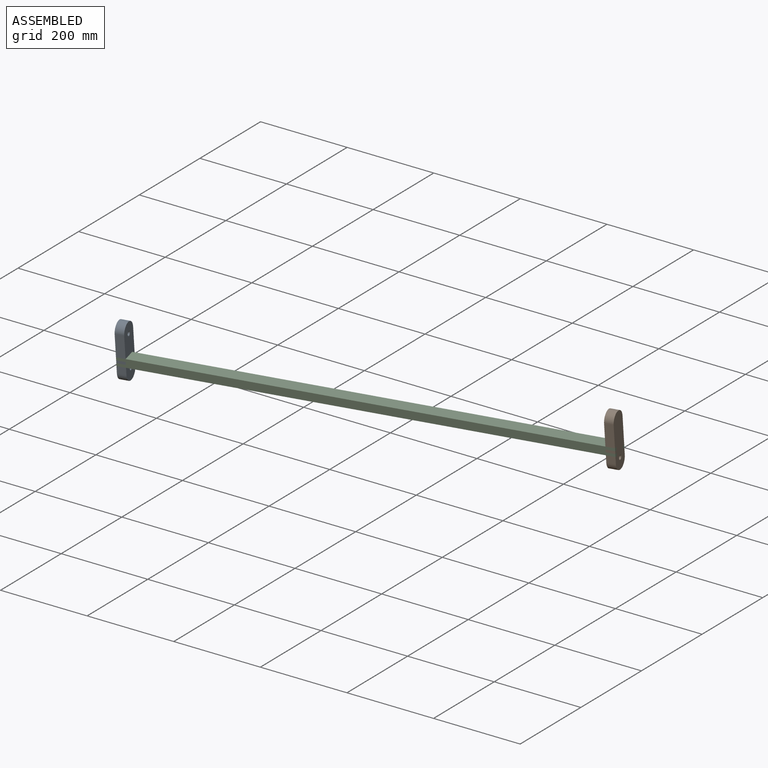
[diagram: assembled view]
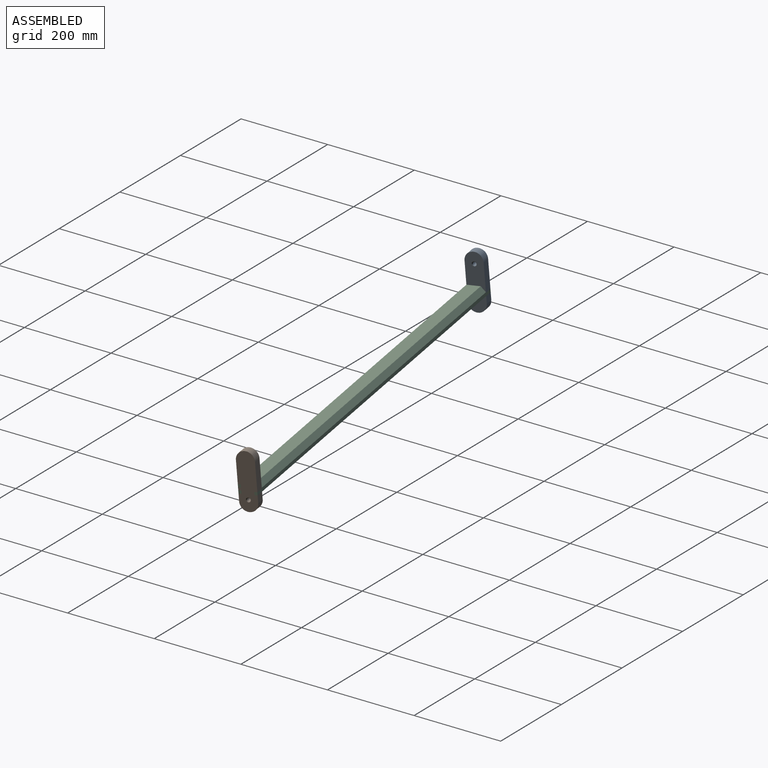
[diagram: assembled view, second angle]
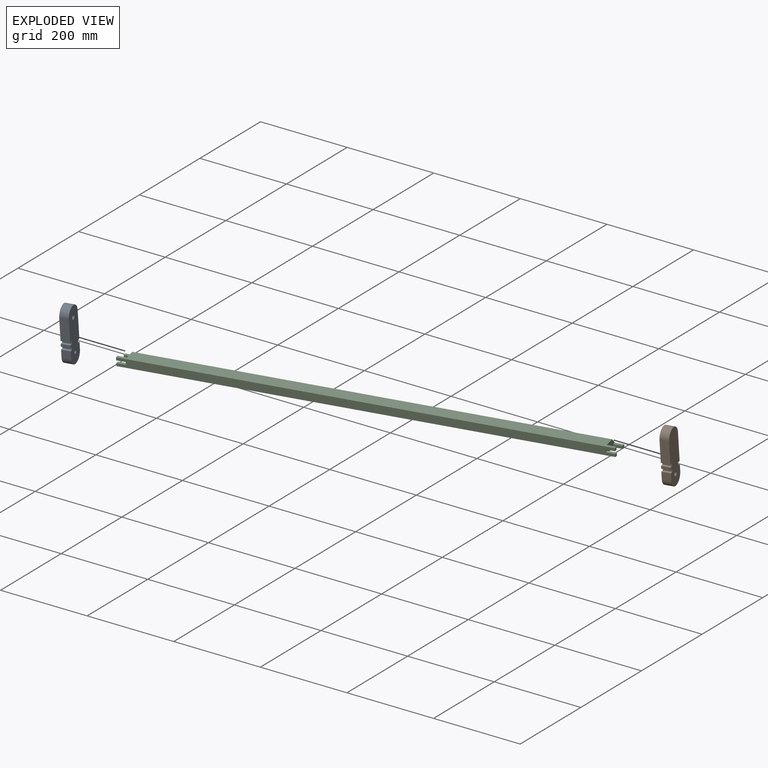
[diagram: exploded view]
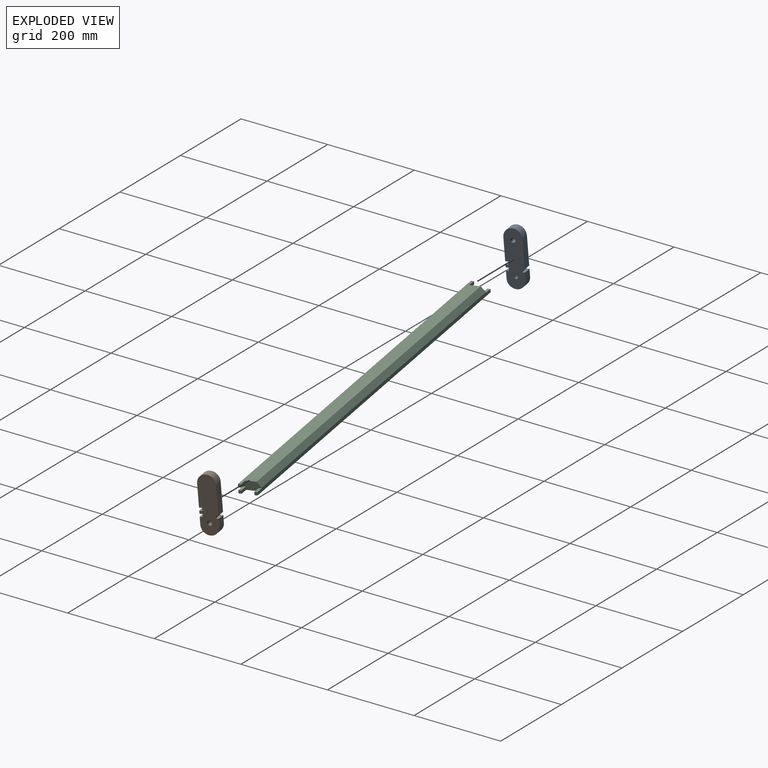
[diagram: exploded view, second angle]
ASSEMBLY  parts=3 mates=2
PART A: 22 faces, bbox 40x20x125 mm
  f0: plane 49.79x20mm, normal (1,0,0), area 995.7mm2, adj f3,f4,f6,f15
  f1: plane 20x6mm, normal (1,0,0), area 120mm2, adj f3,f4,f9,f16
  f2: plane 62.29x20mm, normal (-1,0,0), area 1245.7mm2, adj f3,f4,f6,f14
  f3: plane 125x40mm, normal (0,-1,0), area 4397.9mm2, adj f0,f1,f2,f5,f6,f7,f8,f9
  f4: plane 125x40mm, normal (0,1,0), area 4397.9mm2, adj f0,f1,f2,f5,f6,f7,f8,f9
  f5: plane 20x16.21mm, normal (1,0,0), area 324.3mm2, adj f3,f4,f8,f10
  f6: cylinder r=20mm len=40mm, axis (0,1,0), area 1256.6mm2, adj f0,f2,f3,f4
  f7: plane 20x16.21mm, normal (-1,0,0), area 324.3mm2, adj f3,f4,f8,f13
  f8: cylinder r=20mm len=40mm, axis (0,1,0), area 1256.6mm2, adj f3,f4,f5,f7
  f9: plane 20x6.5mm, normal (0,0,-1), area 130mm2, adj f1,f3,f4,f11
  f10: plane 20x6.5mm, normal (0,0,1), area 130mm2, adj f3,f4,f5,f11
  f11: plane 20x6.5mm, normal (1,0,0), area 130mm2, adj f3,f4,f9,f10
  f12: plane 20x6.5mm, normal (-1,0,0), area 130mm2, adj f3,f4,f13,f14
  f13: plane 20x6.5mm, normal (0,0,1), area 130mm2, adj f3,f4,f7,f12
  f14: plane 20x6.5mm, normal (0,0,-1), area 130mm2, adj f2,f3,f4,f12
  f15: plane 20x6.5mm, normal (0,0,-1), area 130mm2, adj f0,f3,f4,f17
  f16: plane 20x6.5mm, normal (0,0,1), area 130mm2, adj f1,f3,f4,f17
  f17: plane 20x6.5mm, normal (1,0,0), area 130mm2, adj f3,f4,f15,f16
  f18: cylinder r=4mm len=18.9mm, axis (0,1,0), area 475mm2, adj f3,f20
  f19: cylinder r=4mm len=18.9mm, axis (0,-1,0), area 475mm2, adj f4,f21
  f20: cone r=5.1mm half-angle=45deg, axis (0,1,0), area 44.5mm2, adj f4,f18
  f21: cone r=5.1mm half-angle=45deg, axis (0,-1,0), area 44.5mm2, adj f3,f19
PART B: 23 faces, bbox 40x20x125 mm
  f0: plane 20x16.21mm, normal (-1,0,0), area 324.3mm2, adj f3,f4,f7,f9
  f1: plane 20x6mm, normal (1,0,0), area 120mm2, adj f3,f4,f12,f17
  f2: plane 20x16.21mm, normal (1,0,0), area 324.3mm2, adj f3,f4,f7,f14
  f3: plane 125x40mm, normal (0,-1,0), area 4401.1mm2, adj f0,f1,f2,f5,f6,f7,f8,f9
  f4: plane 125x40mm, normal (0,1,0), area 4451.3mm2, adj f0,f1,f2,f5,f6,f7,f8,f9
  f5: cylinder r=20mm len=40mm, axis (0,1,0), area 1256.6mm2, adj f3,f4,f6,f8
  f6: plane 62.29x20mm, normal (-1,0,0), area 1245.7mm2, adj f3,f4,f5,f11
  f7: cylinder r=20mm len=40mm, axis (0,1,0), area 1256.6mm2, adj f0,f2,f3,f4
  f8: plane 49.79x20mm, normal (1,0,0), area 995.7mm2, adj f3,f4,f5,f15
  f9: plane 20x6.5mm, normal (0,0,1), area 130mm2, adj f0,f3,f4,f10
  f10: plane 20x6.5mm, normal (-1,0,0), area 130mm2, adj f3,f4,f9,f11
  f11: plane 20x6.5mm, normal (0,0,-1), area 130mm2, adj f3,f4,f6,f10
  f12: plane 20x6.5mm, normal (0,0,-1), area 130mm2, adj f1,f3,f4,f13
  f13: plane 20x6.5mm, normal (1,0,0), area 130mm2, adj f3,f4,f12,f14
  f14: plane 20x6.5mm, normal (0,0,1), area 130mm2, adj f2,f3,f4,f13
  f15: plane 20x6.5mm, normal (0,0,-1), area 130mm2, adj f3,f4,f8,f16
  f16: plane 20x6.5mm, normal (1,0,0), area 130mm2, adj f3,f4,f15,f17
  f17: plane 20x6.5mm, normal (0,0,1), area 130mm2, adj f1,f3,f4,f16
  f18: cylinder r=4mm len=19mm, axis (0,1,0), area 477.5mm2, adj f3,f22
  f19: cylinder r=4mm len=10mm, axis (0,-1,0), area 251.3mm2, adj f20,f21
  f20: plane 8x8mm, normal (0,-1,0), area 50.3mm2, adj f19
  f21: cone r=5mm half-angle=45deg, axis (0,-1,0), area 40mm2, adj f3,f19
  f22: cone r=5mm half-angle=45deg, axis (0,1,0), area 40mm2, adj f4,f18
PART C: 25 faces, bbox 1042x40x19 mm
  f0: plane 40x19mm, normal (-1,0,0), area 577.3mm2, adj f1,f3,f4,f5,f6,f7,f9,f10
  f1: plane 1042x7.82mm, normal (0,-1,0), area 8095.3mm2, adj f0,f2,f4,f10,f11,f16,f17,f24
  f2: plane 40x19mm, normal (1,0,0), area 577.3mm2, adj f1,f3,f4,f5,f15,f16,f18,f19
  f3: plane 1042x30mm, normal (0,0,1), area 30320mm2, adj f0,f2,f5,f7,f8,f19,f20,f24
  f4: plane 1042x40mm, normal (0,0,-1), area 40600mm2, adj f0,f1,f2,f5,f9,f11,f13,f14
  f5: plane 1042x19mm, normal (0,1,0), area 19558mm2, adj f0,f2,f3,f4,f6,f8,f12,f14
  f6: plane 20x6.5mm, normal (0,0,-1), area 130mm2, adj f0,f5,f7,f8
  f7: plane 20x6.5mm, normal (0,-1,0), area 130mm2, adj f0,f3,f6,f8
  f8: plane 6.5x6.5mm, normal (-1,0,0), area 42.3mm2, adj f3,f5,f6,f7
  f9: plane 20x6.5mm, normal (0,1,0), area 130mm2, adj f0,f4,f10,f11
  f10: plane 20x6.5mm, normal (0,0,1), area 130mm2, adj f0,f1,f9,f11
  f11: plane 6.5x6.5mm, normal (-1,0,0), area 42.2mm2, adj f1,f4,f9,f10
  f12: plane 20x6.5mm, normal (0,0,1), area 130mm2, adj f0,f5,f13,f14
  f13: plane 20x6.5mm, normal (0,-1,0), area 130mm2, adj f0,f4,f12,f14
  f14: plane 6.5x6.5mm, normal (-1,0,0), area 42.2mm2, adj f4,f5,f12,f13
  f15: plane 20x6.5mm, normal (0,1,0), area 130mm2, adj f2,f4,f16,f17
  f16: plane 20x6.5mm, normal (0,0,1), area 130mm2, adj f1,f2,f15,f17
  f17: plane 6.5x6.5mm, normal (1,0,0), area 42.2mm2, adj f1,f4,f15,f16
  f18: plane 20x6.5mm, normal (0,0,-1), area 130mm2, adj f2,f5,f19,f20
  f19: plane 20x6.5mm, normal (0,-1,0), area 130mm2, adj f2,f3,f18,f20
  f20: plane 6.5x6.5mm, normal (1,0,0), area 42.3mm2, adj f3,f5,f18,f19
  f21: plane 20x6.5mm, normal (0,-1,0), area 130mm2, adj f2,f4,f22,f23
  f22: plane 20x6.5mm, normal (0,0,1), area 130mm2, adj f2,f5,f21,f23
  f23: plane 6.5x6.5mm, normal (1,0,0), area 42.2mm2, adj f4,f5,f21,f22
  f24: plane 1002x11.18mm, normal (0,-0.75,0.67), area 15030mm2, adj f0,f1,f2,f3
PLACE A rot(axis=(0.05,0.04,-1),80.1deg) t=(-1117.46,279.77,120.3)mm
PLACE B rot(axis=(0.05,0.04,-1),80.1deg) t=(-110.99,456.57,135.77)mm
PLACE C rot(axis=(0,0.04,-1),170deg) t=(-620.6,351.16,76.49)mm
MATE fastened B.f16 <-> C.f7  axis (0.17,-0.98,-0.09) through (-118.49,442.51,123.97)mm
MATE fastened A.f11 <-> C.f21  axis (0.17,-0.98,-0.09) through (-1124.97,266.81,96.05)mm
